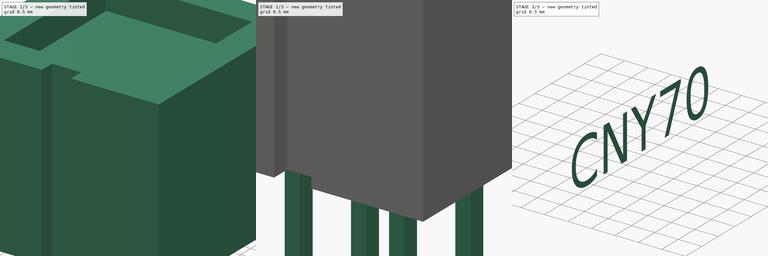
[diagram: build sequence overview — one tinted view per stage of 3, left to right]
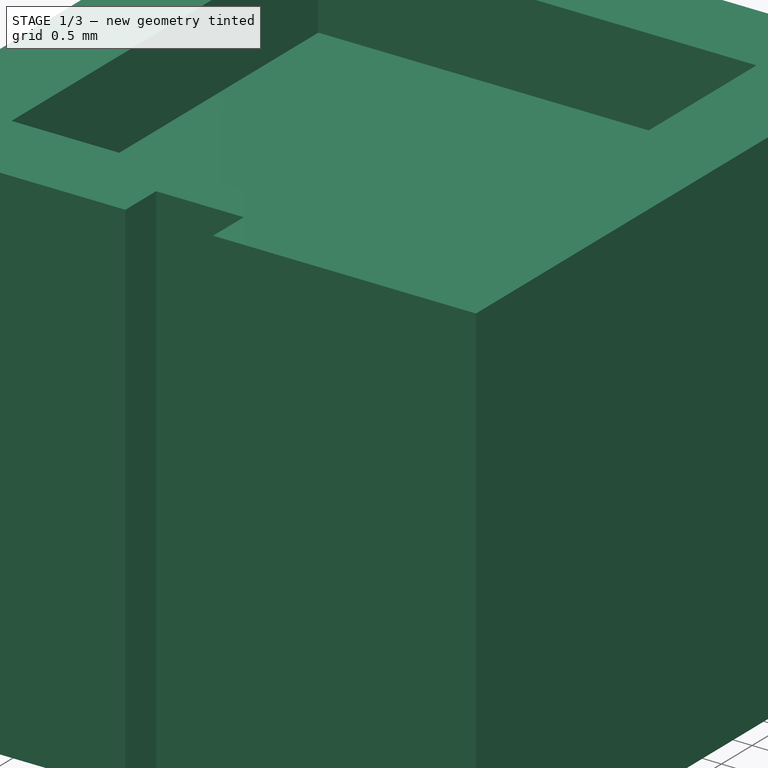
[diagram: stage 1 of 3 — iso view after this stage's code; geometry added in this stage tinted green]
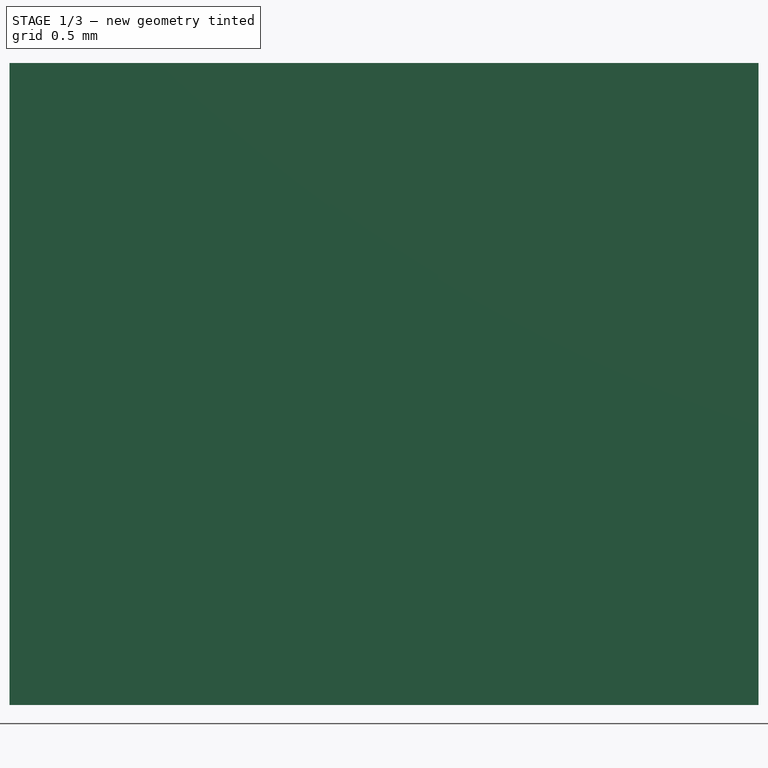
[diagram: stage 1 of 3 — front view after this stage's code; geometry added in this stage tinted green]
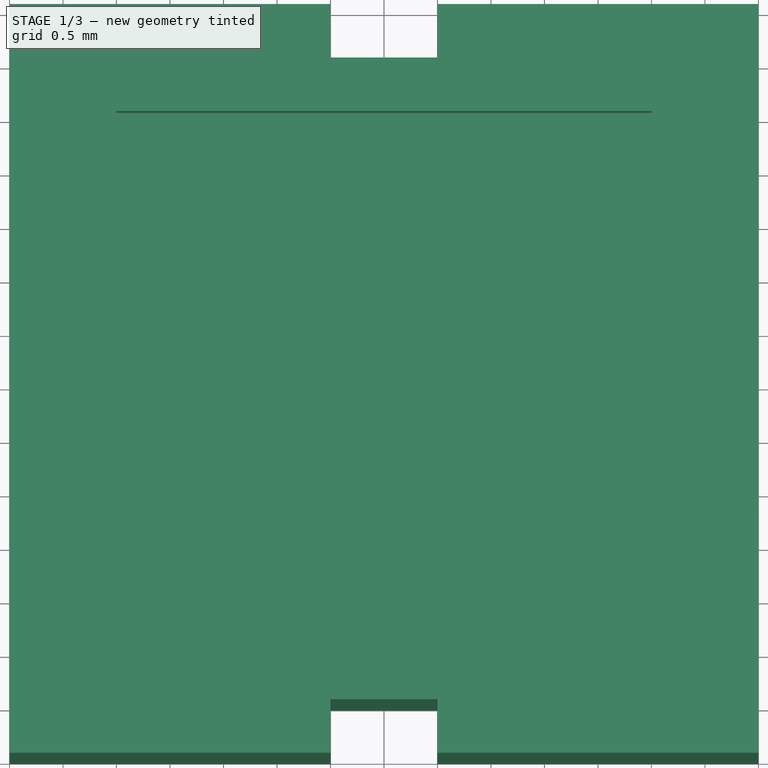
[diagram: stage 1 of 3 — top view after this stage's code; geometry added in this stage tinted green]
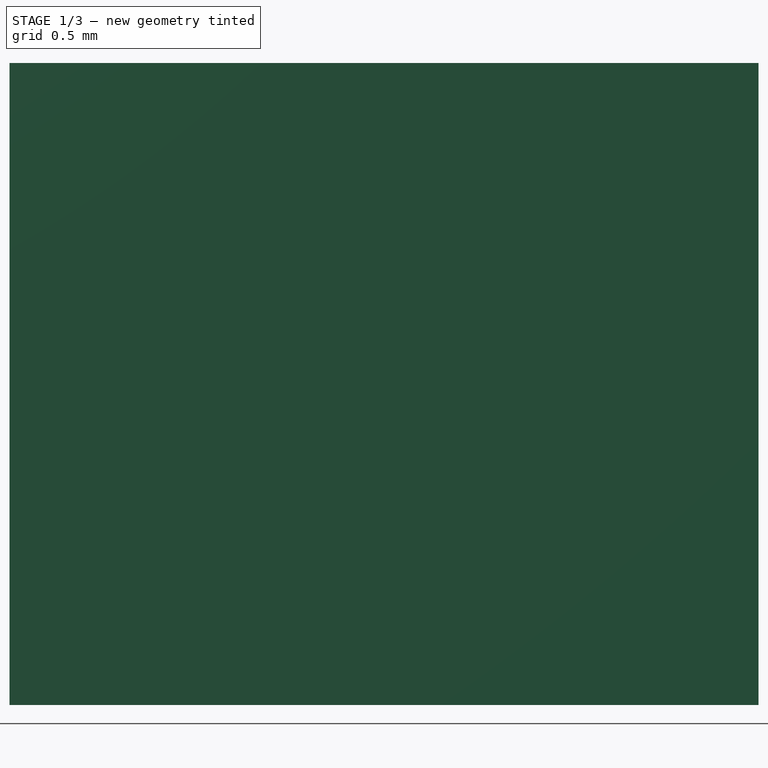
[diagram: stage 1 of 3 — right view after this stage's code; geometry added in this stage tinted green]
FCSTD DOCUMENT  (FreeCAD 0.16R6706 (Git))
Label: CNY70
License: All rights reserved
LicenseURL: http://en.wikipedia.org/wiki/All_rights_reserved
objects: Sketcher::SketchObject×4, PartDesign::Pad×3, PartDesign::Pocket×1, PartDesign::Fillet×1, Part::Part2DObjectPython×1, Part::Extrusion×1
note: 15 computed .brp shape members not serialized (recipe doc carries the construction recipe); baked Part::Feature solids carry a one-line shape summary decoded from their .brp

FEATURE [Sketcher::SketchObject] Sketch
  sketch-geometry (12):
    g0: LineSegment StartX=3.5 StartY=3.5 StartZ=0 EndX=3.5 EndY=-3.5 EndZ=0
    g1: LineSegment StartX=-3.5 StartY=-3.5 StartZ=0 EndX=-3.5 EndY=3.5 EndZ=0
    g2: LineSegment StartX=-3.5 StartY=3.5 StartZ=0 EndX=-0.5 EndY=3.5 EndZ=0
    g3: LineSegment StartX=-0.5 StartY=3.5 StartZ=0 EndX=-0.5 EndY=3 EndZ=0
    g4: LineSegment StartX=-0.5 StartY=3 StartZ=0 EndX=0.5 EndY=3 EndZ=0
    g5: LineSegment StartX=0.5 StartY=3 StartZ=0 EndX=0.5 EndY=3.5 EndZ=0
    g6: LineSegment StartX=0.5 StartY=3.5 StartZ=0 EndX=3.5 EndY=3.5 EndZ=0
    g7: LineSegment StartX=-3.5 StartY=-3.5 StartZ=0 EndX=-0.5 EndY=-3.5 EndZ=0
    g8: LineSegment StartX=-0.5 StartY=-3.5 StartZ=0 EndX=-0.5 EndY=-3 EndZ=0
    g9: LineSegment StartX=-0.5 StartY=-3 StartZ=0 EndX=0.5 EndY=-3 EndZ=0
    g10: LineSegment StartX=0.5 StartY=-3 StartZ=0 EndX=0.5 EndY=-3.5 EndZ=0
    g11: LineSegment StartX=0.5 StartY=-3.5 StartZ=0 EndX=3.5 EndY=-3.5 EndZ=0
  constraints (36):
    c: Vertical(g0)
    c: Vertical(g1)
    c: Symmetric(g0,g0,g-1)
    c: Symmetric(g1,g0,g-2)
    c: Horizontal(g2)
    c: Vertical(g3)
    c: Coincident(g3,g4)
    c: Horizontal(g4)
    c: Coincident(g4,g5)
    c: Vertical(g5)
    c: Coincident(g5,g6)
    c: Coincident(g6,g0)
    c: Horizontal(g6)
    c: Coincident(g1,g7)
    c: Horizontal(g7)
    c: Coincident(g7,g8)
    c: Vertical(g8)
    c: Coincident(g8,g9)
    c: Horizontal(g9)
    c: Coincident(g9,g10)
    c: Vertical(g10)
    c: Coincident(g10,g11)
    c: Coincident(g11,g0)
    c: Horizontal(g11)
    c: Coincident(g1,g2)
    c: Equal(g4,g9)
    c: DistanceX(g4,g4) = 1
    c: Coincident(g2,g3)
    c: Symmetric(g3,g4,g-2)
    c: Symmetric(g8,g9,g-2)
    c: Equal(g10,g5)
    c: DistanceY(g5,g5) = 0.5
    c: Equal(g8,g10)
    c: Equal(g5,g3)
    c: DistanceX(g1,g0) = 7
    c: DistanceY(g0,g0) = 7
FEATURE [PartDesign::Pad] Pad
  Length = 6
  Length2 = 100
  Sketch = -> Sketch
  Type = 0
FEATURE [Sketcher::SketchObject] Sketch001
  Placement = pos=(0,0,6) rot=(0,0,1;0rad)
  Support = -> Pad [Face14]
  sketch-geometry (4):
    g0: LineSegment StartX=-2.5 StartY=2.5 StartZ=0 EndX=2.5 EndY=2.5 EndZ=0
    g1: LineSegment StartX=2.5 StartY=2.5 StartZ=0 EndX=2.5 EndY=-2.5 EndZ=0
    g2: LineSegment StartX=2.5 StartY=-2.5 StartZ=0 EndX=-2.5 EndY=-2.5 EndZ=0
    g3: LineSegment StartX=-2.5 StartY=-2.5 StartZ=0 EndX=-2.5 EndY=2.5 EndZ=0
  constraints (12):
    c: Coincident(g0,g1)
    c: Coincident(g1,g2)
    c: Coincident(g2,g3)
    c: Coincident(g3,g0)
    c: Horizontal(g0)
    c: Horizontal(g2)
    c: Vertical(g1)
    c: Vertical(g3)
    c: Symmetric(g0,g1,g-1)
    c: Symmetric(g0,g0,g-2)
    c: DistanceX(g0,g0) = 5
    c: Equal(g1,g0)
FEATURE [PartDesign::Pocket] Pocket
  Length = 1
  Sketch = -> Sketch001
  Type = 0
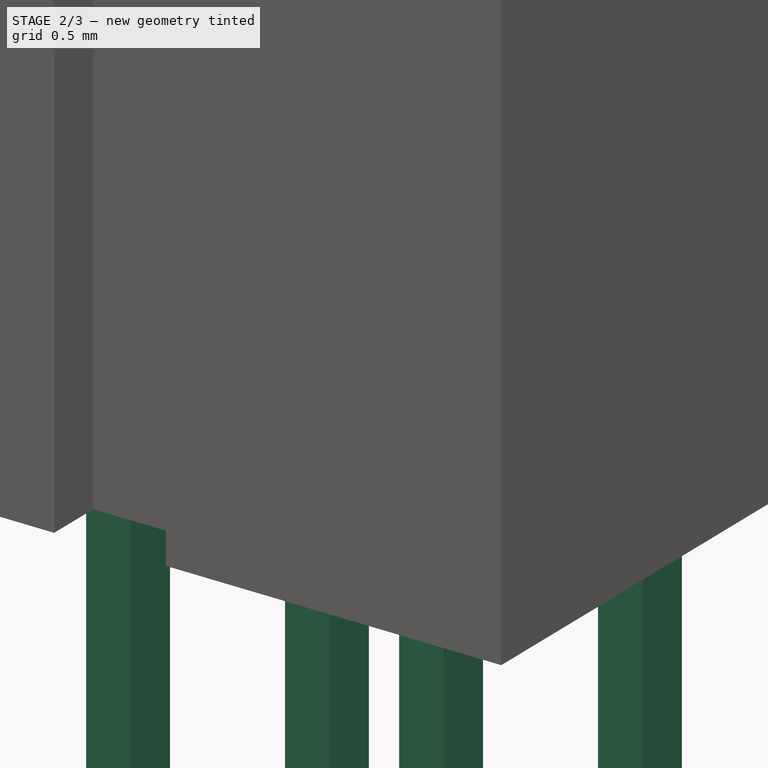
[diagram: stage 2 of 3 — iso view after this stage's code; geometry added in this stage tinted green]
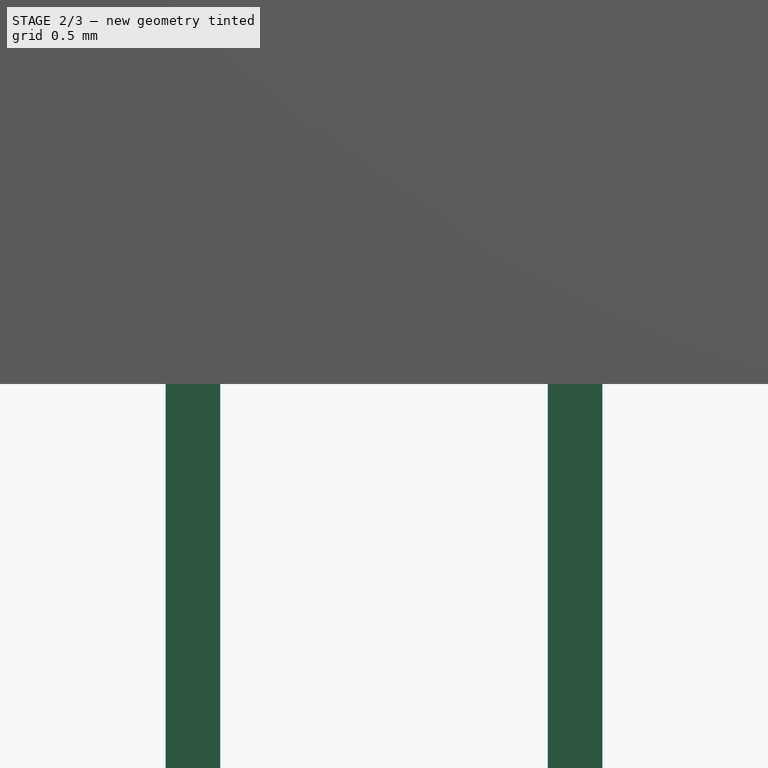
[diagram: stage 2 of 3 — front view after this stage's code; geometry added in this stage tinted green]
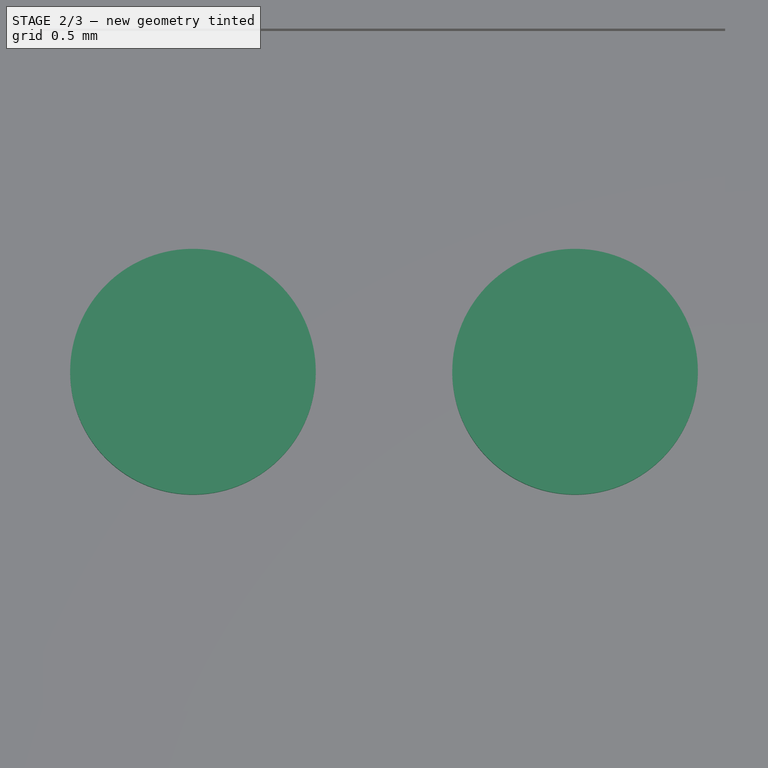
[diagram: stage 2 of 3 — top view after this stage's code; geometry added in this stage tinted green]
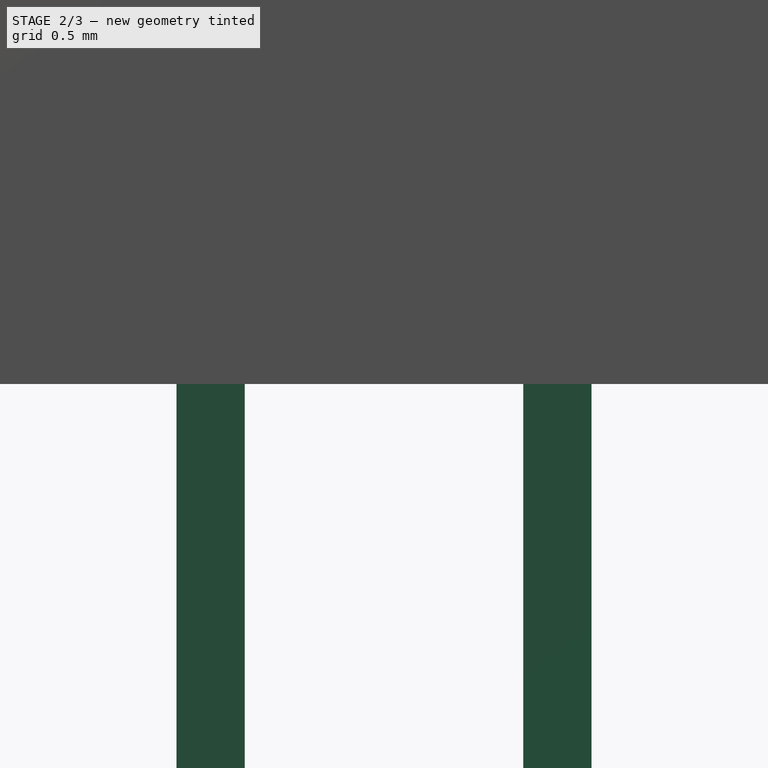
[diagram: stage 2 of 3 — right view after this stage's code; geometry added in this stage tinted green]
FEATURE [Sketcher::SketchObject] Sketch002
  Placement = pos=(0,0,5) rot=(0,0,1;0rad)
  Support = -> Pocket [Face19]
  sketch-geometry (2):
    g0: Circle CenterX=-1.4 CenterY=0 CenterZ=0 NormalX=0 NormalY=0 NormalZ=1 Radius=0.9
    g1: Circle CenterX=1.4 CenterY=0 CenterZ=0 NormalX=0 NormalY=0 NormalZ=1 Radius=0.9
  constraints (6):
    c: PointOnObject(g0,g-1)
    c: PointOnObject(g1,g-1)
    c: Symmetric(g0,g1,g-2)
    c: DistanceX(g0,g1) = 2.8
    c: Equal(g0,g1)
    c: Radius(g1) = 0.9
FEATURE [PartDesign::Pad] Pad001
  Length = 0.2
  Length2 = 100
  Sketch = -> Sketch002
  Type = 0
FEATURE [Sketcher::SketchObject] Sketch003
  Placement = pos=(0,0,0) rot=(1,0,0;3.14159rad)
  Support = -> Pad001 [Face4]
  sketch-geometry (20):
    g0: LineSegment [constr] StartX=-1.4 StartY=1.27 StartZ=0 EndX=1.4 EndY=1.27 EndZ=0
    g1: LineSegment [constr] StartX=1.4 StartY=1.27 StartZ=0 EndX=1.4 EndY=-1.27 EndZ=0
    g2: LineSegment [constr] StartX=1.4 StartY=-1.27 StartZ=0 EndX=-1.4 EndY=-1.27 EndZ=0
    g3: LineSegment [constr] StartX=-1.4 StartY=-1.27 StartZ=0 EndX=-1.4 EndY=1.27 EndZ=0
    g4: LineSegment StartX=1.2 StartY=1.52 StartZ=0 EndX=1.6 EndY=1.52 EndZ=0
    g5: LineSegment StartX=1.6 StartY=1.52 StartZ=0 EndX=1.6 EndY=1.02 EndZ=0
    g6: LineSegment StartX=1.6 StartY=1.02 StartZ=0 EndX=1.2 EndY=1.02 EndZ=0
    g7: LineSegment StartX=1.2 StartY=1.02 StartZ=0 EndX=1.2 EndY=1.52 EndZ=0
    g8: LineSegment StartX=-1.6 StartY=1.52 StartZ=0 EndX=-1.2 EndY=1.52 EndZ=0
    g9: LineSegment StartX=-1.2 StartY=1.52 StartZ=0 EndX=-1.2 EndY=1.02 EndZ=0
    g10: LineSegment StartX=-1.2 StartY=1.02 StartZ=0 EndX=-1.6 EndY=1.02 EndZ=0
    g11: LineSegment StartX=-1.6 StartY=1.02 StartZ=0 EndX=-1.6 EndY=1.52 EndZ=0
    g12: LineSegment StartX=-1.6 StartY=-1.02 StartZ=0 EndX=-1.2 EndY=-1.02 EndZ=0
    g13: LineSegment StartX=-1.2 StartY=-1.02 StartZ=0 EndX=-1.2 EndY=-1.52 EndZ=0
    g14: LineSegment StartX=-1.2 StartY=-1.52 StartZ=0 EndX=-1.6 EndY=-1.52 EndZ=0
    g15: LineSegment StartX=-1.6 StartY=-1.52 StartZ=0 EndX=-1.6 EndY=-1.02 EndZ=0
    g16: LineSegment StartX=1.2 StartY=-1.02 StartZ=0 EndX=1.6 EndY=-1.02 EndZ=0
    g17: LineSegment StartX=1.6 StartY=-1.02 StartZ=0 EndX=1.6 EndY=-1.52 EndZ=0
    g18: LineSegment StartX=1.6 StartY=-1.52 StartZ=0 EndX=1.2 EndY=-1.52 EndZ=0
    g19: LineSegment StartX=1.2 StartY=-1.52 StartZ=0 EndX=1.2 EndY=-1.02 EndZ=0
  constraints (56):
    c: Coincident(g0,g1)
    c: Coincident(g1,g2)
    c: Coincident(g2,g3)
    c: Coincident(g3,g0)
    c: Symmetric(g0,g0,g-2)
    c: Symmetric(g1,g0,g-1)
    c: DistanceX(g0,g0) = 2.8
    c: DistanceY(g1,g0) = 2.54
    c: Coincident(g4,g5)
    c: Coincident(g5,g6)
    c: Coincident(g6,g7)
    c: Coincident(g7,g4)
    c: Horizontal(g4)
    c: Horizontal(g6)
    c: Vertical(g5)
    c: Vertical(g7)
    c: Coincident(g8,g9)
    c: Coincident(g9,g10)
    c: Coincident(g10,g11)
    c: Coincident(g11,g8)
    c: Horizontal(g8)
    c: Horizontal(g10)
    c: Vertical(g9)
    c: Vertical(g11)
    c: Coincident(g12,g13)
    c: Coincident(g13,g14)
    c: Coincident(g14,g15)
    c: Coincident(g15,g12)
    c: Horizontal(g12)
    c: Horizontal(g14)
    c: Vertical(g13)
    c: Vertical(g15)
    c: Coincident(g16,g17)
    c: Coincident(g17,g18)
    c: Coincident(g18,g19)
    c: Coincident(g19,g16)
    c: Horizontal(g16)
    c: Horizontal(g18)
    c: Vertical(g17)
    c: Vertical(g19)
    c: Symmetric(g9,g10,g3)
    c: Symmetric(g8,g9,g0)
    c: Symmetric(g6,g4,g0)
    c: Symmetric(g6,g5,g1)
    c: Symmetric(g16,g16,g1)
    c: Symmetric(g16,g18,g2)
    c: Symmetric(g12,g13,g2)
    c: Symmetric(g12,g12,g3)
    c: Equal(g9,g13)
    c: Equal(g13,g17)
    c: Equal(g17,g5)
    c: Equal(g10,g14)
    c: Equal(g14,g18)
    c: Equal(g18,g6)
    c: DistanceX(g18,g18) = 0.4
    c: DistanceY(g17,g16) = 0.5
FEATURE [PartDesign::Pad] Pad002
  Length = 6
  Length2 = 100
  Sketch = -> Sketch003
  Type = 0
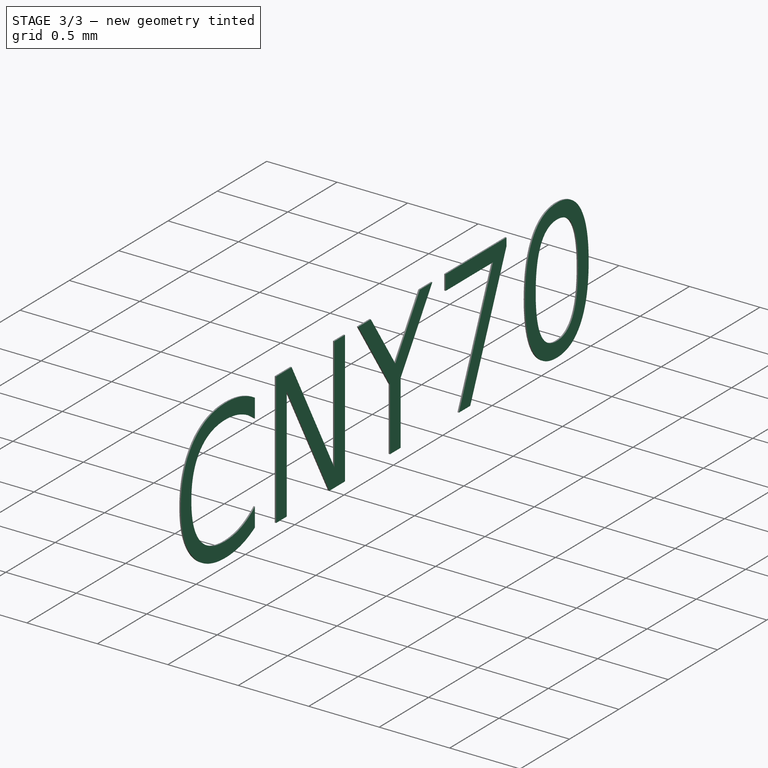
[diagram: stage 3 of 3 — iso view after this stage's code; geometry added in this stage tinted green]
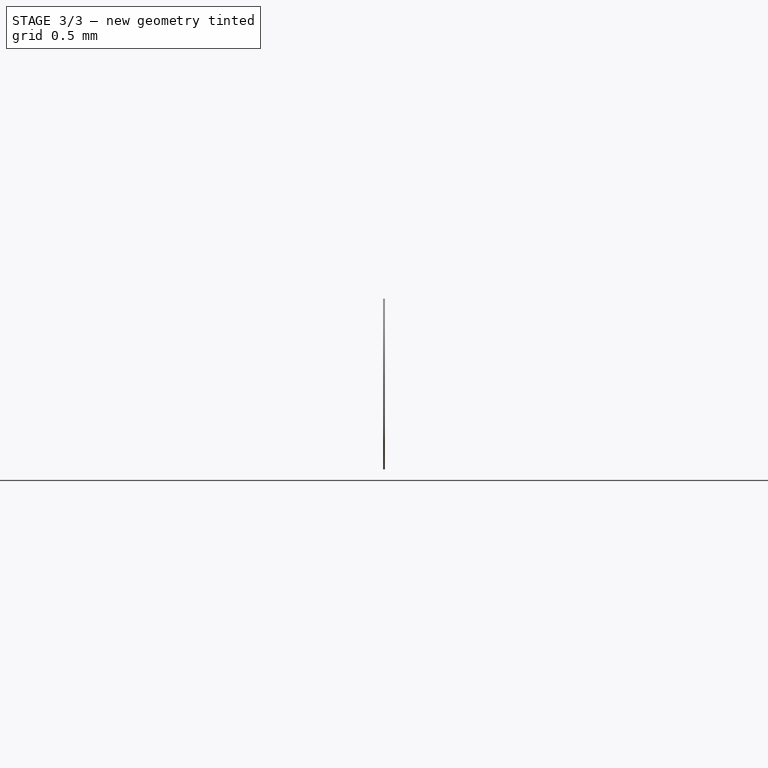
[diagram: stage 3 of 3 — front view after this stage's code; geometry added in this stage tinted green]
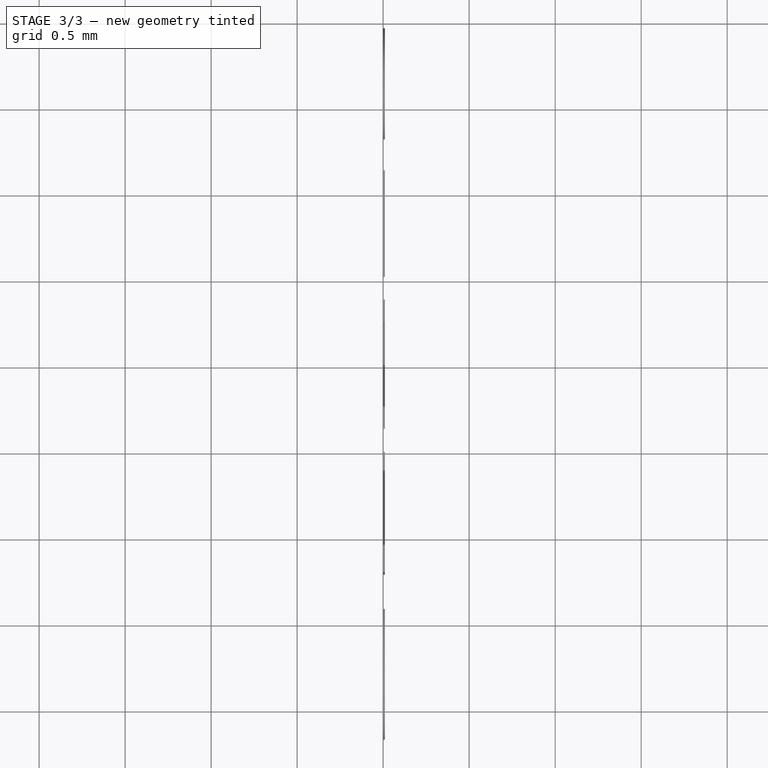
[diagram: stage 3 of 3 — top view after this stage's code; geometry added in this stage tinted green]
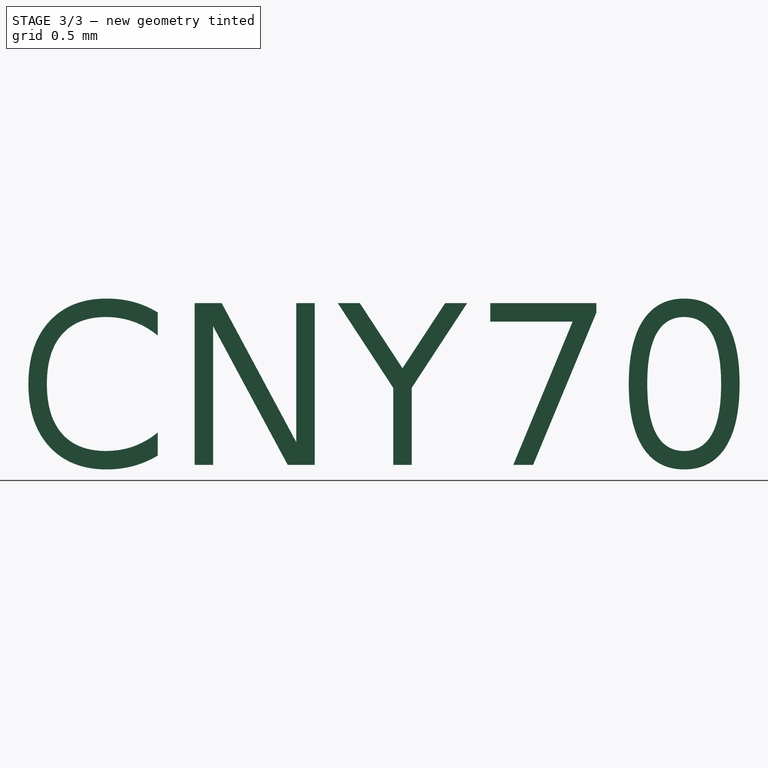
[diagram: stage 3 of 3 — right view after this stage's code; geometry added in this stage tinted green]
FEATURE [PartDesign::Fillet] Fillet
  Base = -> Pad002 [Edge48,Edge47,Edge46,Edge45,Edge4,Edge7,Edge38,Edge42,Edge44,Edge43,Edge39,Edge10]
  Radius = 0.15
FEATURE [Part::Part2DObjectPython] ShapeString  # Draft 2D object (typed FeaturePython)
  FontFile = C:/Program Files/FreeCAD 0.16/bin/Lib/site-packages/matplotlib/mpl-data/fonts/ttf/Vera.ttf
  Placement = pos=(3.5,-2.25,3) rot=(0.57735,0.57735,0.57735;2.0944rad)
  Size = 1
  String = CNY70
  Support = -> Fillet
  Tracking = 0
FEATURE [Part::Extrusion] Extrude
  Base = -> ShapeString
  Dir = (0.01,0,0)
  Placement = pos=(0,0,-0.5) rot=(0,0,1;0rad)
  Solid = true
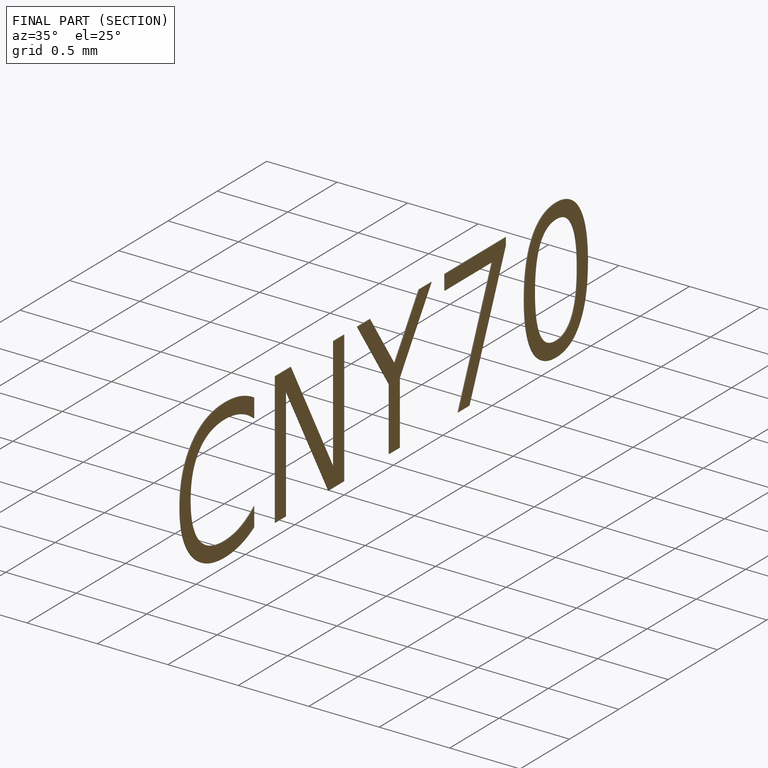
[diagram: finished part — half-section view (interior)]
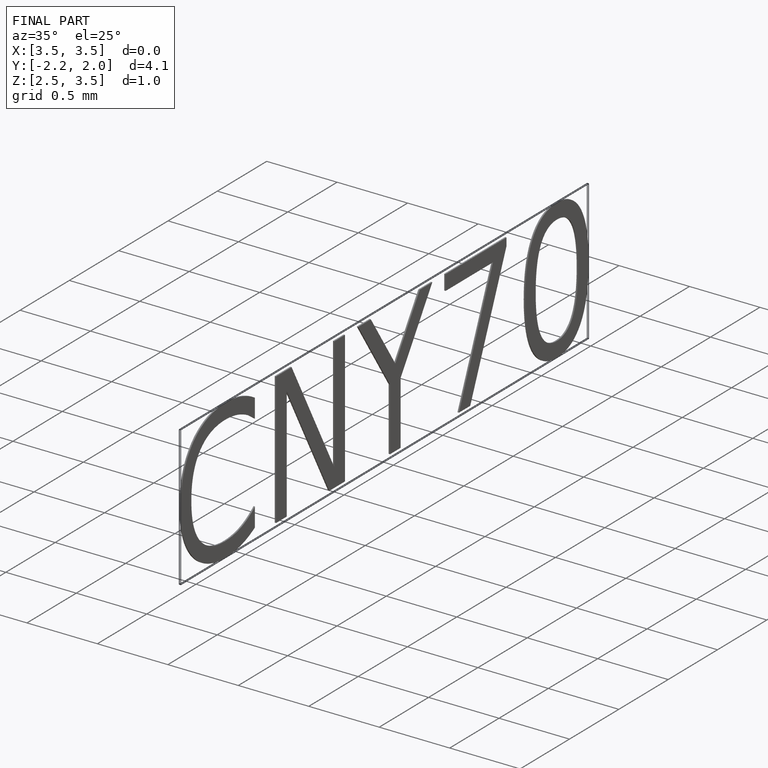
[diagram: finished part — iso view with bounding-box wireframe]
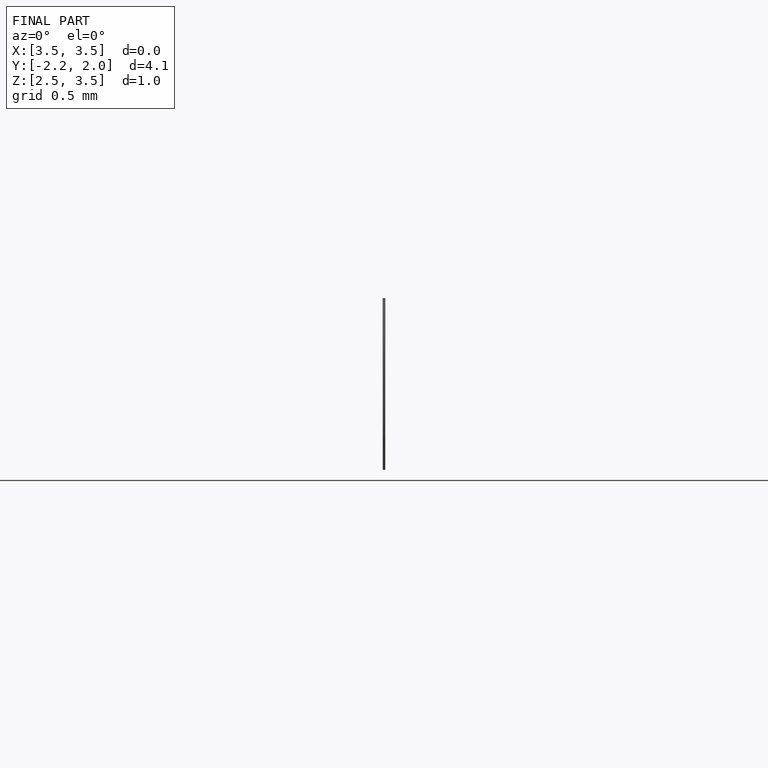
[diagram: finished part — front view with bounding-box wireframe]
